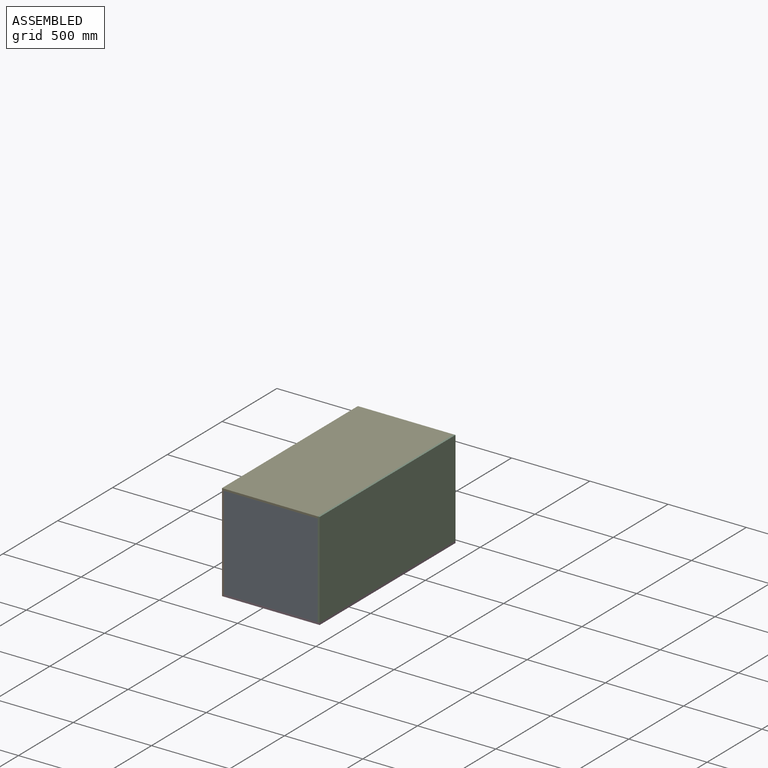
[diagram: assembled view]
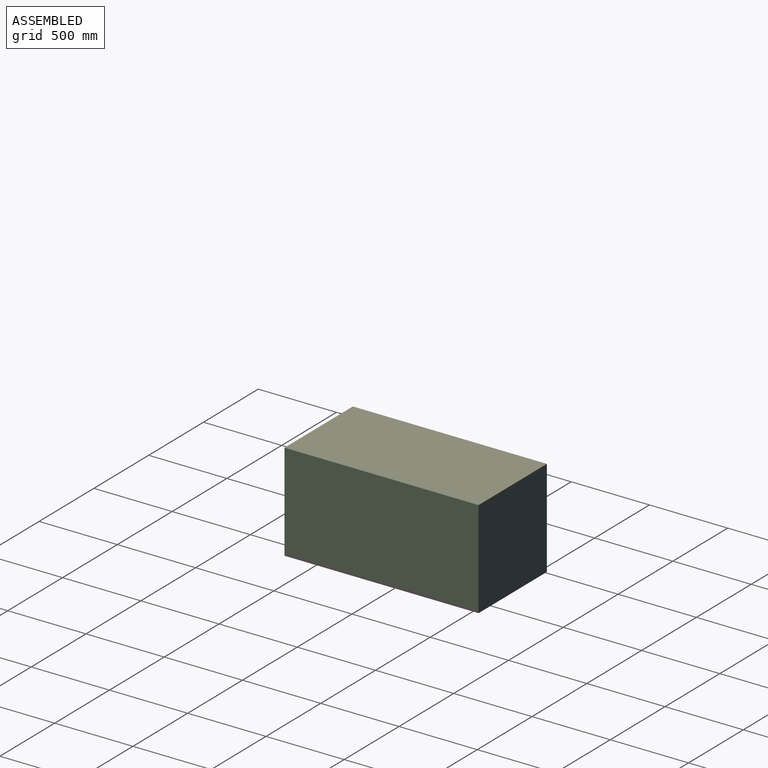
[diagram: assembled view, second angle]
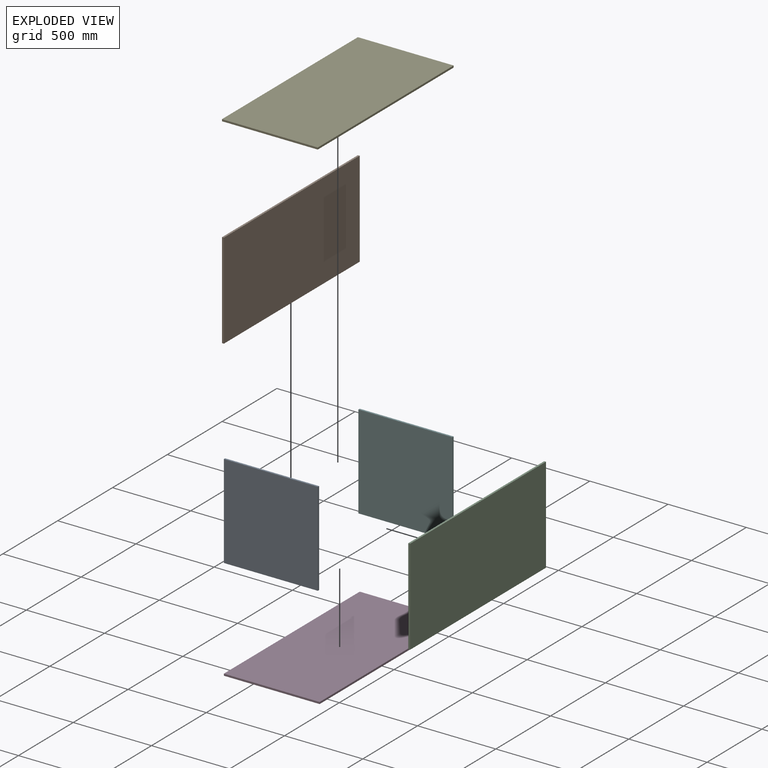
[diagram: exploded view]
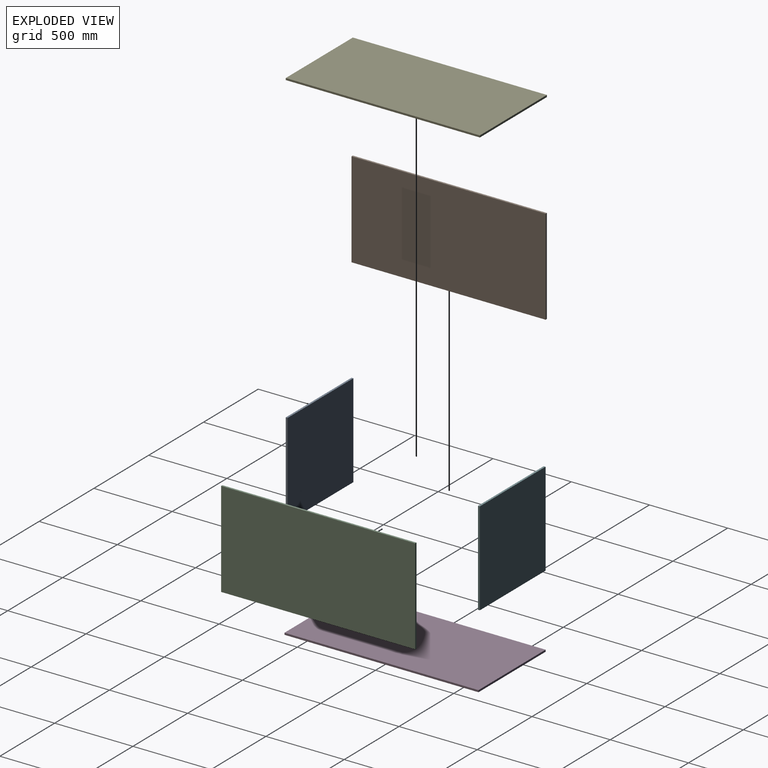
[diagram: exploded view, second angle]
ASSEMBLY  parts=6 mates=5
PART A: 6 faces, bbox 600x600x12 mm
  f0: plane 600x12mm, normal (1,0,0), area 7200mm2, adj f1,f3,f4,f5
  f1: plane 600x12mm, normal (0,1,0), area 7200mm2, adj f0,f2,f4,f5
  f2: plane 600x12mm, normal (-1,0,0), area 7200mm2, adj f1,f3,f4,f5
  f3: plane 600x12mm, normal (0,-1,0), area 7200mm2, adj f0,f2,f4,f5
  f4: plane 600x600mm, normal (0,0,1), area 360000mm2, adj f0,f1,f2,f3
  f5: plane 600x600mm, normal (0,0,-1), area 360000mm2, adj f0,f1,f2,f3
PART B: 6 faces, bbox 612x12x1240 mm
  f0: plane 1240x612mm, normal (0,-1,0), area 758880mm2, adj f1,f3,f4,f5
  f1: plane 1240x12mm, normal (1,0,0), area 14880mm2, adj f0,f2,f4,f5
  f2: plane 1240x612mm, normal (0,1,0), area 758880mm2, adj f1,f3,f4,f5
  f3: plane 1240x12mm, normal (-1,0,0), area 14880mm2, adj f0,f2,f4,f5
  f4: plane 612x12mm, normal (0,0,1), area 7344mm2, adj f0,f1,f2,f3
  f5: plane 612x12mm, normal (0,0,-1), area 7344mm2, adj f0,f1,f2,f3
PART C: same geometry as B
PART D: same geometry as B
PART E: same geometry as B
PART F: same geometry as A
PLACE A rot(axis=(1,0,0),90deg) t=(1142.01,-1101.7,890.35)mm
PLACE B rot(axis=(-0.58,-0.58,-0.58),120deg) t=(530.01,-1113.7,890.35)mm
PLACE C rot(axis=(-0.58,-0.58,-0.58),120deg) t=(1142.01,-1113.7,902.35)mm
PLACE D rot(axis=(0,0.71,0.71),180deg) t=(1142.01,-1113.7,278.35)mm
PLACE E rot(axis=(0,-0.71,0.71),180deg) t=(1130.01,126.3,1502.35)mm
PLACE F rot(axis=(1,0,0),90deg) t=(1142.01,126.3,890.35)mm
MATE fastened D.f2 <-> A.f3  axis (0,0,1) through (1148.01,-1113.7,590.35)mm
MATE fastened B.f1 <-> E.f2  axis (0,0,1) through (836.01,-493.7,1190.35)mm
MATE fastened E.f3 <-> C.f0  axis (1,0,0) through (1442.01,-493.7,1196.35)mm
MATE fastened B.f3 <-> D.f0  axis (0,0,-1) through (836.01,-493.7,578.35)mm
MATE fastened F.f3 <-> D.f2  axis (0,0,-1) through (1142.01,120.3,590.35)mm
